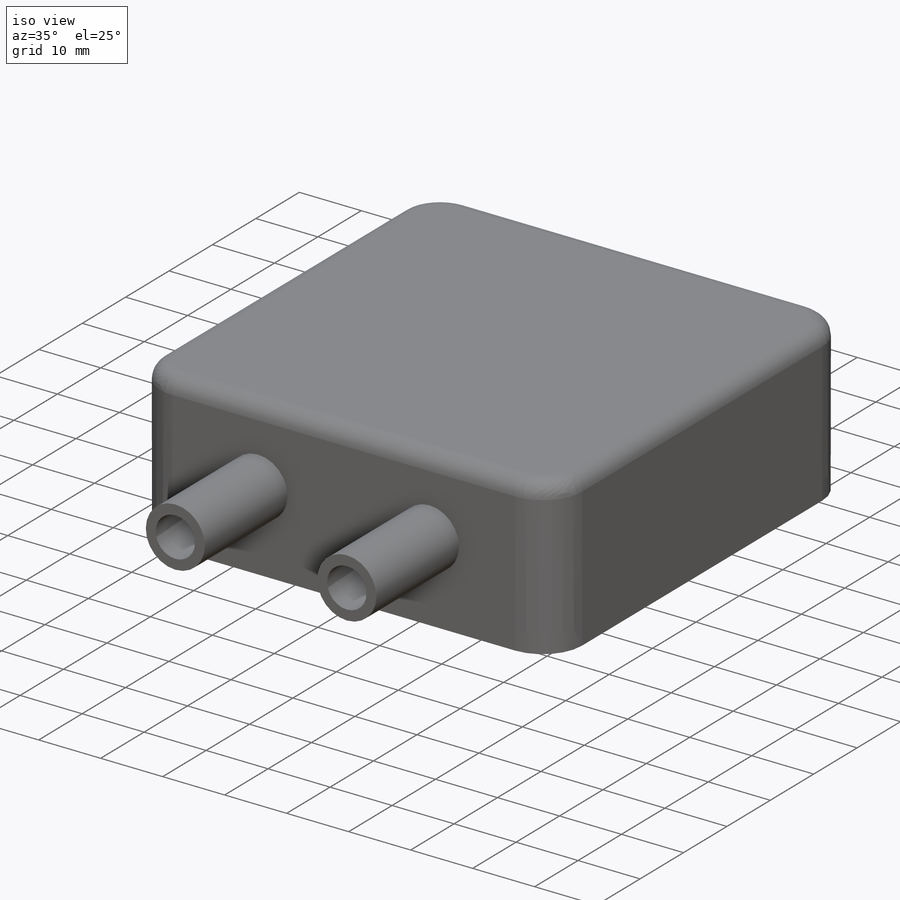
[diagram: iso view]
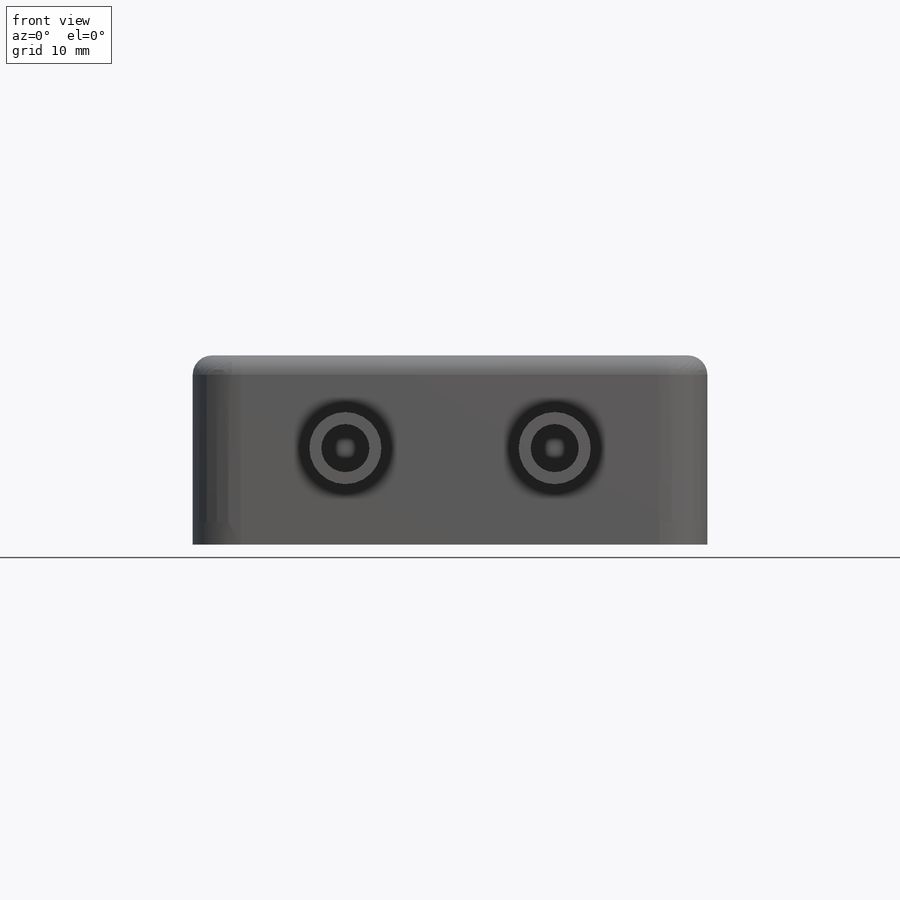
[diagram: front view]
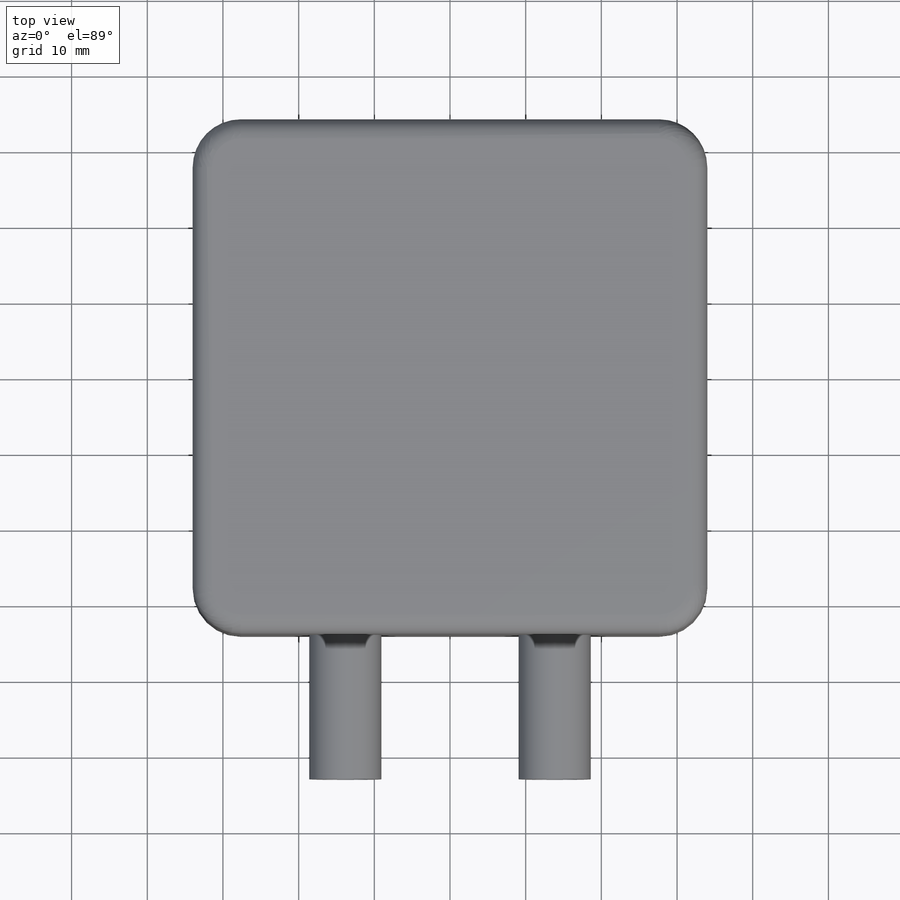
[diagram: top view]
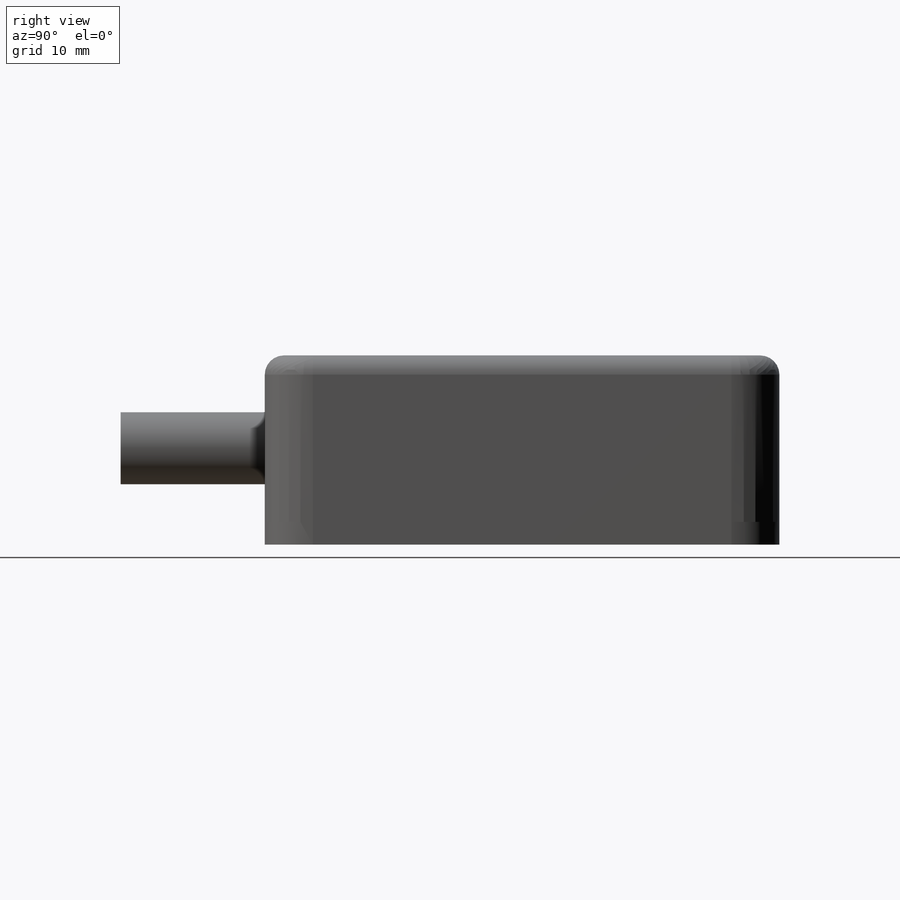
[diagram: right view]
SOLIDWORKS PART (.sldprt)
format: sldprt  version: not decoded by parser v0  size: 387,072 bytes
history: native  units: mm
features: sketch x3, extrude x3, fillet x3, material x1 (+11 scaffold rows collapsed)
feature tree (21):
  scaffold x11  (default folders/planes/origin — collapsed)
  material  "Material <not specified>"
  sketch  "Sketch1"  dims[D1=68.0mm D2=68.0mm]
  extrude  "Boss-Extrude1"  Depth=22mm
  fillet  "Fillet1"  Radius=2.54mm
  fillet  "Fillet2"  Radius=6.35mm
  sketch  "Sketch2"  dims[D1=9.525mm D2=6.35mm D3=13.8303mm D4=13.8303mm]
  extrude  "Boss-Extrude2"  Depth=19.05mm
  sketch  "Sketch3"  dims[D1=68.0mm D2=68.0mm]
  extrude  "Boss-Extrude3"  Depth=3mm
  fillet  "Fillet3"  Radius=6.35mm
decode coverage: 9 of 9 modeling features carry decoded parameters
note: suppression state not decoded; provenance and decode notes live in map.json
